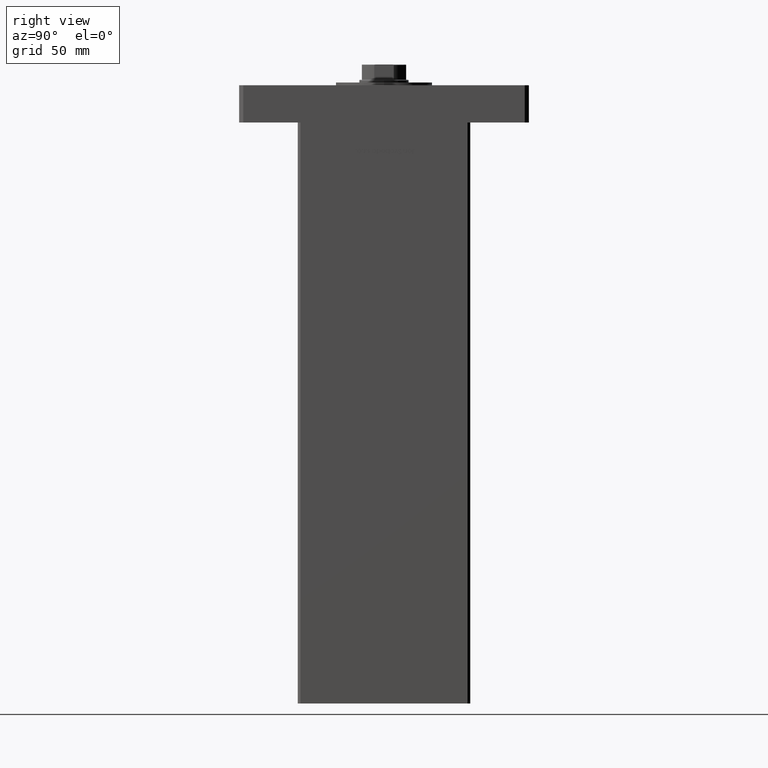
[diagram: clean part render]
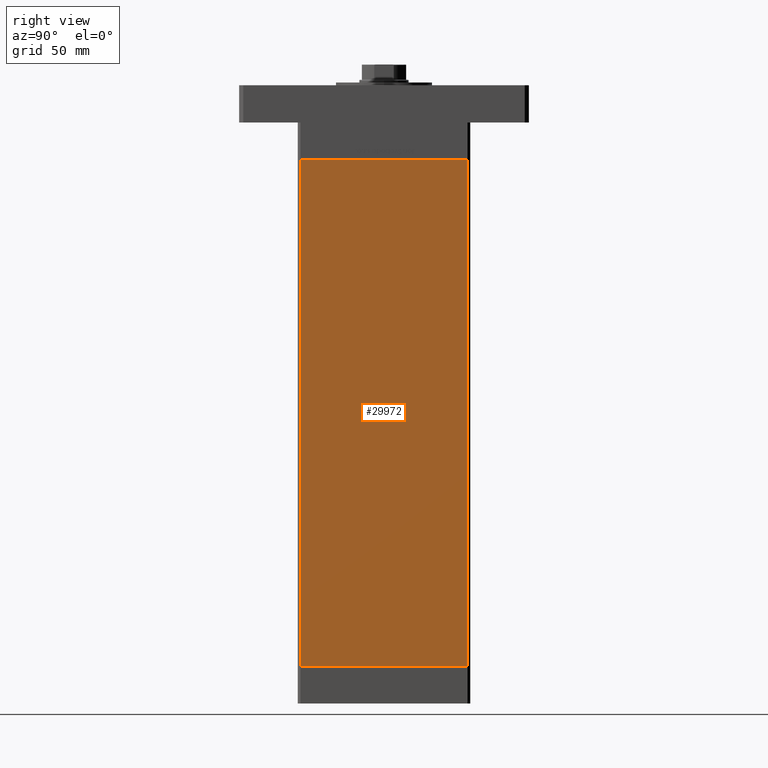
[diagram: same view with one face highlighted and labeled with its STEP entity id]
A machine part, right view. The second image highlights one B-rep face of the part: STEP entity #29972.
In plain terms, the highlighted planar face has unit normal (1, -0, 0).
Its self-contained STEP definition (entity closure, byte-faithful):
#1030 = CARTESIAN_POINT ( 'NONE',  ( 75.00000000000001421, 60.50000000000000000, 367.0000000000000000 ) ) ;
#1358 = CARTESIAN_POINT ( 'NONE',  ( 75.00000000000001421, 60.50000000000000000, 0.000000000000000000 ) ) ;
#5230 = VECTOR ( 'NONE', #42569, 1000.000000000000000 ) ;
#9627 = EDGE_LOOP ( 'NONE', ( #40198, #25102, #17552, #17623 ) ) ;
#10550 = VERTEX_POINT ( 'NONE', #27788 ) ;
#12486 = CARTESIAN_POINT ( 'NONE',  ( 75.00000000000001421, 60.50000000000000000, 367.0000000000000000 ) ) ;
#13037 = LINE ( 'NONE', #12486, #44195 ) ;
#13619 = EDGE_CURVE ( 'NONE', #34441, #49185, #13037, .T. ) ;
#13931 = AXIS2_PLACEMENT_3D ( 'NONE', #17094, #46087, #49862 ) ;
#17094 = CARTESIAN_POINT ( 'NONE',  ( 75.00000000000001421, 60.50000000000000000, 367.0000000000000000 ) ) ;
#17552 = ORIENTED_EDGE ( 'NONE', *, *, #42138, .T. ) ;
#17623 = ORIENTED_EDGE ( 'NONE', *, *, #27760, .T. ) ;
#20051 = DIRECTION ( 'NONE',  ( -0.000000000000000000, -0.000000000000000000, -1.000000000000000000 ) ) ;
#20329 = FACE_OUTER_BOUND ( 'NONE', #9627, .T. ) ;
#22186 = DIRECTION ( 'NONE',  ( -2.293849224432141861E-16, -1.000000000000000000, 0.000000000000000000 ) ) ;
#23598 = EDGE_CURVE ( 'NONE', #49185, #34532, #46324, .T. ) ;
#25102 = ORIENTED_EDGE ( 'NONE', *, *, #13619, .F. ) ;
#27760 = EDGE_CURVE ( 'NONE', #10550, #34532, #38221, .T. ) ;
#27788 = CARTESIAN_POINT ( 'NONE',  ( 74.99999999999998579, -60.50000000000000000, 367.0000000000000000 ) ) ;
#29689 = CARTESIAN_POINT ( 'NONE',  ( 75.00000000000001421, 60.50000000000000000, 367.0000000000000000 ) ) ;
#29972 = ADVANCED_FACE ( 'NONE', ( #20329 ), #33049, .T. ) ;
#33049 = PLANE ( 'NONE',  #13931 ) ;
#34441 = VERTEX_POINT ( 'NONE', #29689 ) ;
#34532 = VERTEX_POINT ( 'NONE', #47019 ) ;
#34890 = VECTOR ( 'NONE', #45994, 1000.000000000000000 ) ;
#38068 = VECTOR ( 'NONE', #22186, 1000.000000000000000 ) ;
#38221 = LINE ( 'NONE', #46640, #5230 ) ;
#40198 = ORIENTED_EDGE ( 'NONE', *, *, #23598, .F. ) ;
#42138 = EDGE_CURVE ( 'NONE', #34441, #10550, #50845, .T. ) ;
#42569 = DIRECTION ( 'NONE',  ( -0.000000000000000000, -0.000000000000000000, -1.000000000000000000 ) ) ;
#44195 = VECTOR ( 'NONE', #20051, 1000.000000000000000 ) ;
#45994 = DIRECTION ( 'NONE',  ( -2.293849224432141861E-16, -1.000000000000000000, 0.000000000000000000 ) ) ;
#46087 = DIRECTION ( 'NONE',  ( 1.000000000000000000, -2.293849224432141861E-16, 0.000000000000000000 ) ) ;
#46324 = LINE ( 'NONE', #1358, #38068 ) ;
#46640 = CARTESIAN_POINT ( 'NONE',  ( 74.99999999999998579, -60.50000000000000000, 367.0000000000000000 ) ) ;
#47019 = CARTESIAN_POINT ( 'NONE',  ( 74.99999999999998579, -60.50000000000000000, 0.000000000000000000 ) ) ;
#47427 = CARTESIAN_POINT ( 'NONE',  ( 75.00000000000001421, 60.50000000000000000, 0.000000000000000000 ) ) ;
#49185 = VERTEX_POINT ( 'NONE', #47427 ) ;
#49862 = DIRECTION ( 'NONE',  ( 2.293849224432141861E-16, 1.000000000000000000, 0.000000000000000000 ) ) ;
#50845 = LINE ( 'NONE', #1030, #34890 ) ;